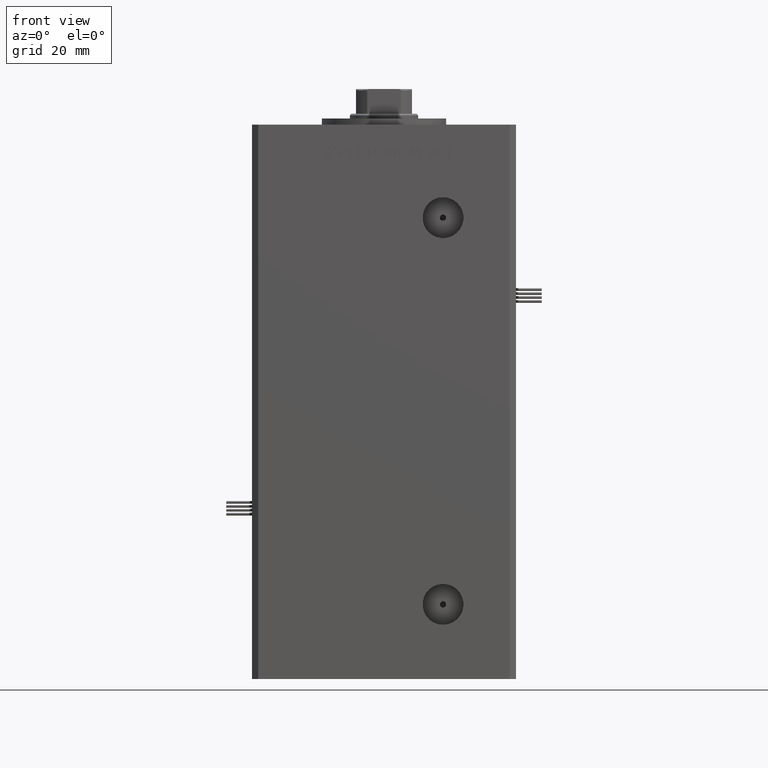
[diagram: clean part render]
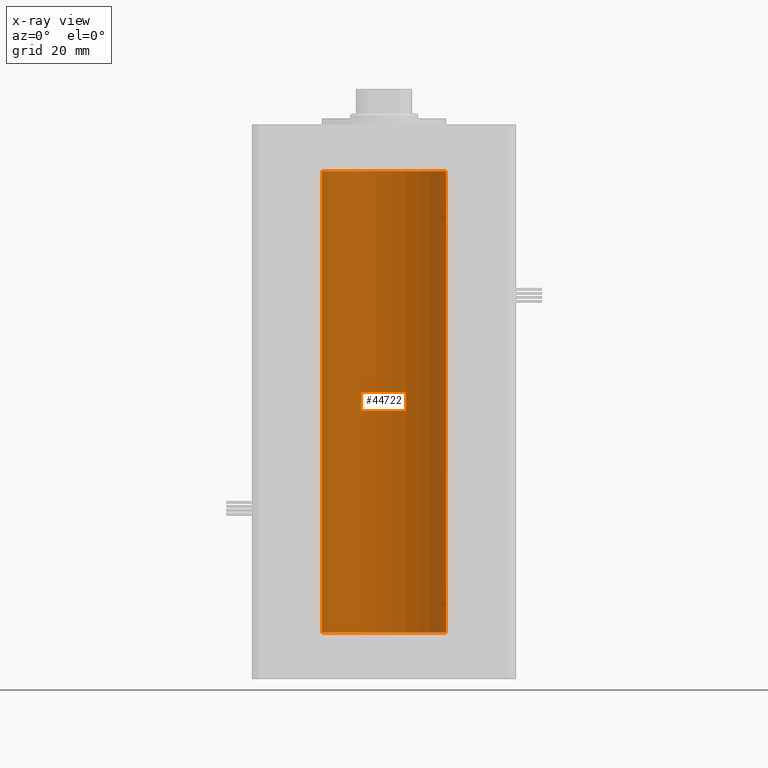
[diagram: x-ray — body ghosted, one internal face saturated and labeled with its STEP entity id]
A machine part, front view, then the same camera in x-ray: the body is ghosted and one INTERNAL B-rep face — a face not visible from any outside direction — is saturated and labeled: STEP entity #44722.
In plain terms, the highlighted cylindrical surface (partial cylindrical patch) has radius 20 mm, axis along (-0, -0, -1).
Its self-contained STEP definition (entity closure, byte-faithful):
#2815 = ORIENTED_EDGE ( 'NONE', *, *, #30743, .F. ) ;
#2896 = DIRECTION ( 'NONE',  ( -0.000000000000000000, -0.000000000000000000, -1.000000000000000000 ) ) ;
#3162 = CARTESIAN_POINT ( 'NONE',  ( -20.00000000000000000, 0.000000000000000000, 148.5000000000000000 ) ) ;
#6074 = DIRECTION ( 'NONE',  ( 1.000000000000000000, 0.000000000000000000, 0.000000000000000000 ) ) ;
#8887 = CIRCLE ( 'NONE', #16001, 20.00000000000000000 ) ;
#8893 = CARTESIAN_POINT ( 'NONE',  ( 20.00000000000000000, 2.449293598294706513E-15, 0.000000000000000000 ) ) ;
#10265 = CARTESIAN_POINT ( 'NONE',  ( 0.000000000000000000, 0.000000000000000000, 0.000000000000000000 ) ) ;
#11549 = AXIS2_PLACEMENT_3D ( 'NONE', #21742, #52173, #47976 ) ;
#13102 = CYLINDRICAL_SURFACE ( 'NONE', #11549, 20.00000000000000000 ) ;
#14812 = AXIS2_PLACEMENT_3D ( 'NONE', #10265, #23094, #6074 ) ;
#15184 = CARTESIAN_POINT ( 'NONE',  ( 20.00000000000000000, 2.449293598294706513E-15, 148.5000000000000000 ) ) ;
#16001 = AXIS2_PLACEMENT_3D ( 'NONE', #41760, #41212, #37288 ) ;
#16496 = VERTEX_POINT ( 'NONE', #15184 ) ;
#20358 = VERTEX_POINT ( 'NONE', #8893 ) ;
#20527 = EDGE_CURVE ( 'NONE', #20358, #51433, #46001, .T. ) ;
#21742 = CARTESIAN_POINT ( 'NONE',  ( 0.000000000000000000, 0.000000000000000000, 148.5000000000000000 ) ) ;
#23094 = DIRECTION ( 'NONE',  ( -0.000000000000000000, 0.000000000000000000, 1.000000000000000000 ) ) ;
#23135 = VECTOR ( 'NONE', #2896, 1000.000000000000000 ) ;
#24830 = ORIENTED_EDGE ( 'NONE', *, *, #29236, .T. ) ;
#26198 = FACE_OUTER_BOUND ( 'NONE', #36992, .T. ) ;
#27745 = LINE ( 'NONE', #3162, #48093 ) ;
#28155 = ORIENTED_EDGE ( 'NONE', *, *, #44053, .T. ) ;
#29236 = EDGE_CURVE ( 'NONE', #44168, #51433, #27745, .T. ) ;
#30743 = EDGE_CURVE ( 'NONE', #16496, #20358, #41130, .T. ) ;
#32207 = CARTESIAN_POINT ( 'NONE',  ( 20.00000000000000000, 2.449293598294706513E-15, 148.5000000000000000 ) ) ;
#35396 = CARTESIAN_POINT ( 'NONE',  ( -20.00000000000000000, 0.000000000000000000, 0.000000000000000000 ) ) ;
#36992 = EDGE_LOOP ( 'NONE', ( #2815, #28155, #24830, #42349 ) ) ;
#37288 = DIRECTION ( 'NONE',  ( 1.000000000000000000, 0.000000000000000000, 0.000000000000000000 ) ) ;
#39224 = CARTESIAN_POINT ( 'NONE',  ( -20.00000000000000000, 0.000000000000000000, 148.5000000000000000 ) ) ;
#41130 = LINE ( 'NONE', #32207, #23135 ) ;
#41212 = DIRECTION ( 'NONE',  ( -0.000000000000000000, 0.000000000000000000, 1.000000000000000000 ) ) ;
#41760 = CARTESIAN_POINT ( 'NONE',  ( 0.000000000000000000, 0.000000000000000000, 148.5000000000000000 ) ) ;
#42349 = ORIENTED_EDGE ( 'NONE', *, *, #20527, .F. ) ;
#44053 = EDGE_CURVE ( 'NONE', #16496, #44168, #8887, .T. ) ;
#44168 = VERTEX_POINT ( 'NONE', #39224 ) ;
#44722 = ADVANCED_FACE ( 'NONE', ( #26198 ), #13102, .F. ) ;
#44758 = DIRECTION ( 'NONE',  ( -0.000000000000000000, -0.000000000000000000, -1.000000000000000000 ) ) ;
#46001 = CIRCLE ( 'NONE', #14812, 20.00000000000000000 ) ;
#47976 = DIRECTION ( 'NONE',  ( -1.000000000000000000, 0.000000000000000000, 0.000000000000000000 ) ) ;
#48093 = VECTOR ( 'NONE', #44758, 1000.000000000000000 ) ;
#51433 = VERTEX_POINT ( 'NONE', #35396 ) ;
#52173 = DIRECTION ( 'NONE',  ( -0.000000000000000000, -0.000000000000000000, -1.000000000000000000 ) ) ;